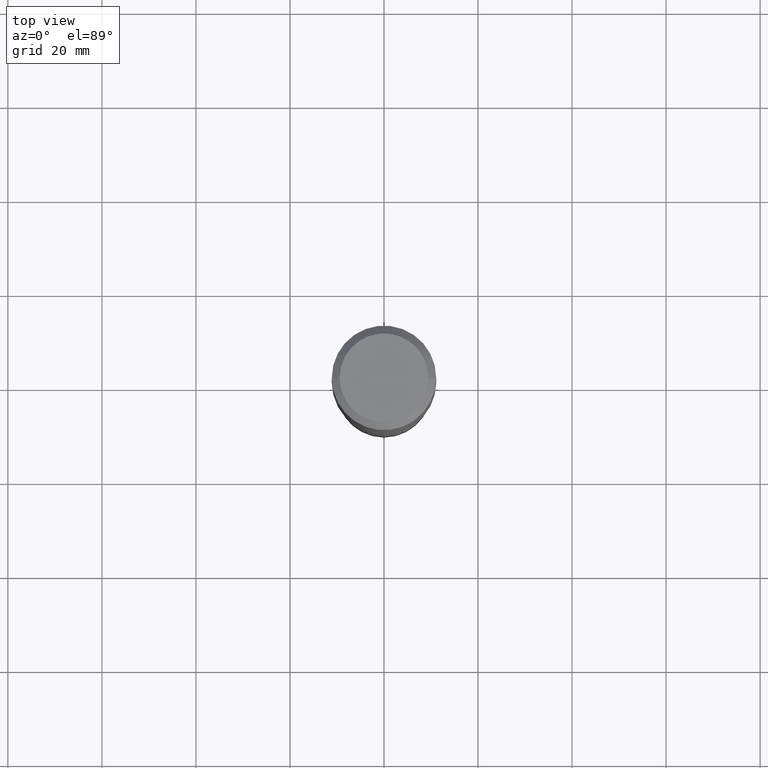
[diagram: clean part render]
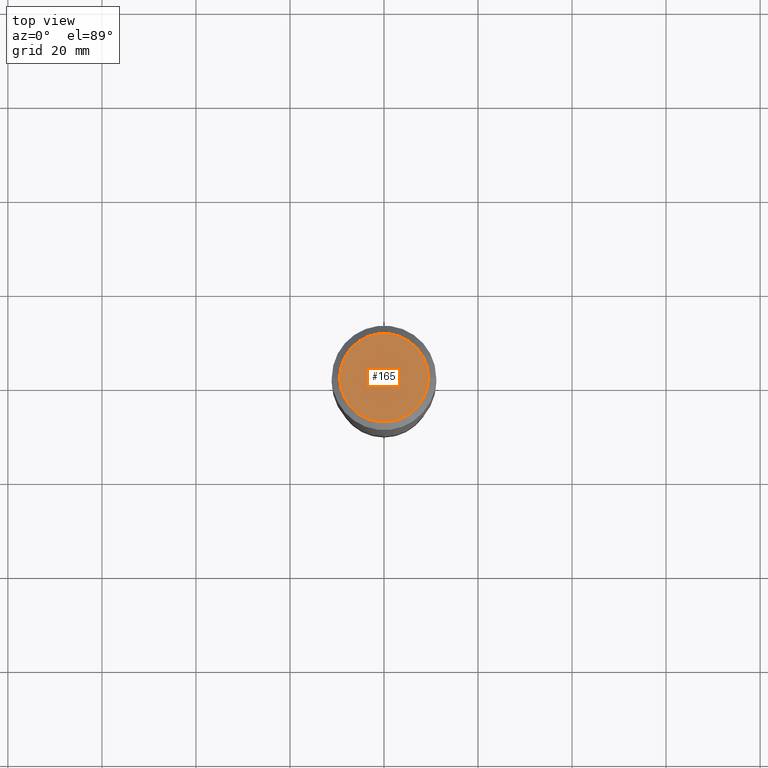
[diagram: same view with one face highlighted and labeled with its STEP entity id]
A machine part, top view. The second image highlights one B-rep face of the part: STEP entity #165.
In plain terms, the highlighted planar face has unit normal (0, -0, -1).
Its self-contained STEP definition (entity closure, byte-faithful):
#49 = DIRECTION ( 'NONE',  ( -2.445468806185136597E-29, 3.491481338843145583E-15, 1.000000000000000000 ) ) ;
#70 = EDGE_LOOP ( 'NONE', ( #253, #97 ) ) ;
#81 = DIRECTION ( 'NONE',  ( 2.438088387897960049E-29, -3.491481338843145188E-15, -1.000000000000000000 ) ) ;
#97 = ORIENTED_EDGE ( 'NONE', *, *, #486, .T. ) ;
#115 = DIRECTION ( 'NONE',  ( -2.445468806185136597E-29, 3.491481338843145583E-15, 1.000000000000000000 ) ) ;
#128 = EDGE_CURVE ( 'NONE', #363, #295, #201, .T. ) ;
#165 = ADVANCED_FACE ( 'NONE', ( #236 ), #304, .F. ) ;
#166 = CARTESIAN_POINT ( 'NONE',  ( -1.591006383764329579E-46, 2.271535455632766759E-32, 6.505936120470313374E-18 ) ) ;
#201 = CIRCLE ( 'NONE', #425, 0.3718749999999999556 ) ;
#223 = CARTESIAN_POINT ( 'NONE',  ( 0.3718749999999999556, -2.890922014903958629E-15, 6.505936120489500258E-18 ) ) ;
#236 = FACE_OUTER_BOUND ( 'NONE', #70, .T. ) ;
#253 = ORIENTED_EDGE ( 'NONE', *, *, #128, .T. ) ;
#268 = DIRECTION ( 'NONE',  ( 1.000000000000000000, -6.982962677686267499E-15, 4.876184966057910179E-29 ) ) ;
#295 = VERTEX_POINT ( 'NONE', #223 ) ;
#300 = CARTESIAN_POINT ( 'NONE',  ( -1.591006383764329579E-46, 2.271535455632766759E-32, 6.505936120470313374E-18 ) ) ;
#304 = PLANE ( 'NONE',  #360 ) ;
#312 = DIRECTION ( 'NONE',  ( 1.000000000000000000, -6.982962677686267499E-15, 4.876184966057910179E-29 ) ) ;
#316 = CIRCLE ( 'NONE', #379, 0.3718749999999999556 ) ;
#360 = AXIS2_PLACEMENT_3D ( 'NONE', #450, #81, #376 ) ;
#363 = VERTEX_POINT ( 'NONE', #485 ) ;
#376 = DIRECTION ( 'NONE',  ( -1.000000000000000000, 6.982962677686265922E-15, -4.876176775795935793E-29 ) ) ;
#379 = AXIS2_PLACEMENT_3D ( 'NONE', #166, #49, #312 ) ;
#425 = AXIS2_PLACEMENT_3D ( 'NONE', #300, #115, #268 ) ;
#450 = CARTESIAN_POINT ( 'NONE',  ( -7.955031918821647895E-47, 1.135767727816383379E-32, 3.252968060235156687E-18 ) ) ;
#485 = CARTESIAN_POINT ( 'NONE',  ( -0.3718749999999999556, 2.711353477195369464E-15, 6.505936120451752031E-18 ) ) ;
#486 = EDGE_CURVE ( 'NONE', #295, #363, #316, .T. ) ;